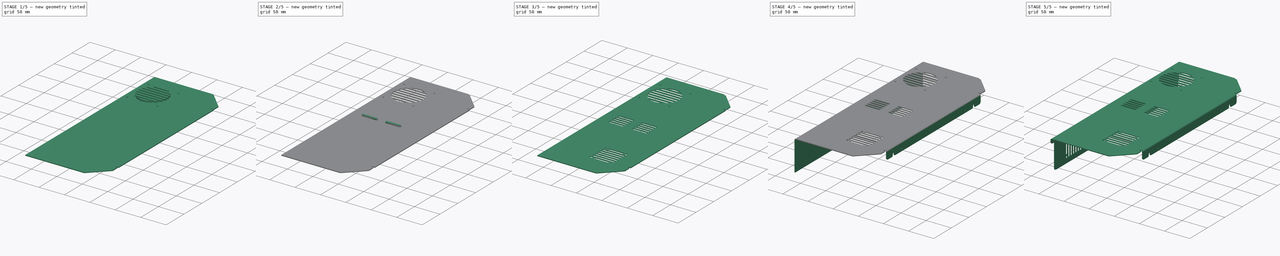
[diagram: build sequence overview — one tinted view per stage of 5, left to right]
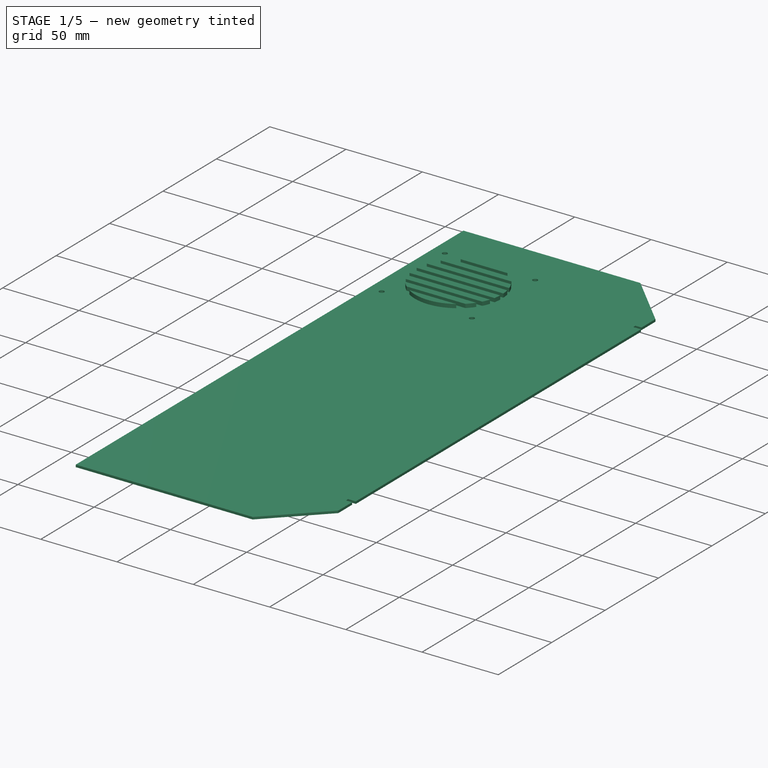
[diagram: stage 1 of 5 — iso view after this stage's code; geometry added in this stage tinted green]
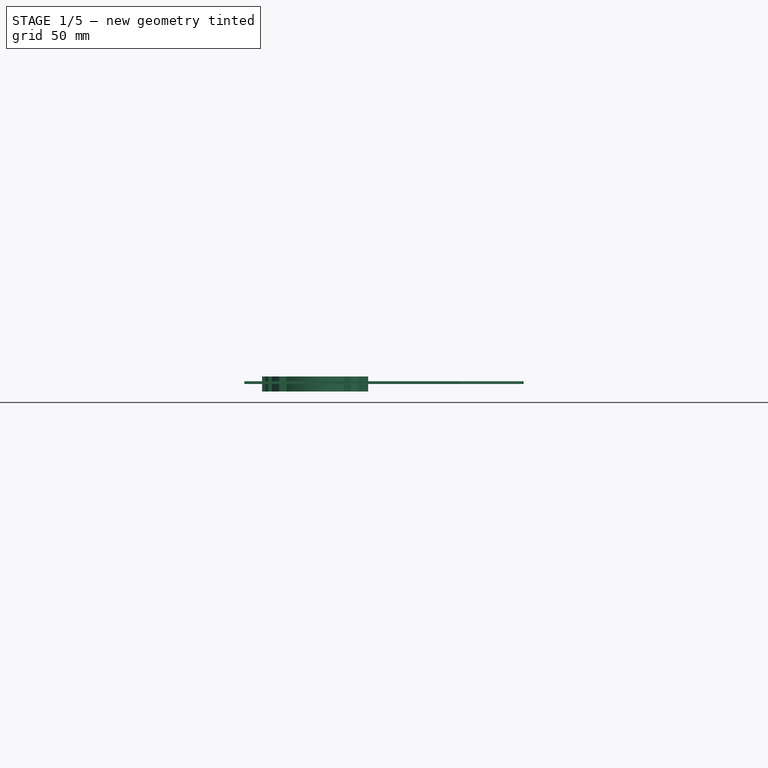
[diagram: stage 1 of 5 — front view after this stage's code; geometry added in this stage tinted green]
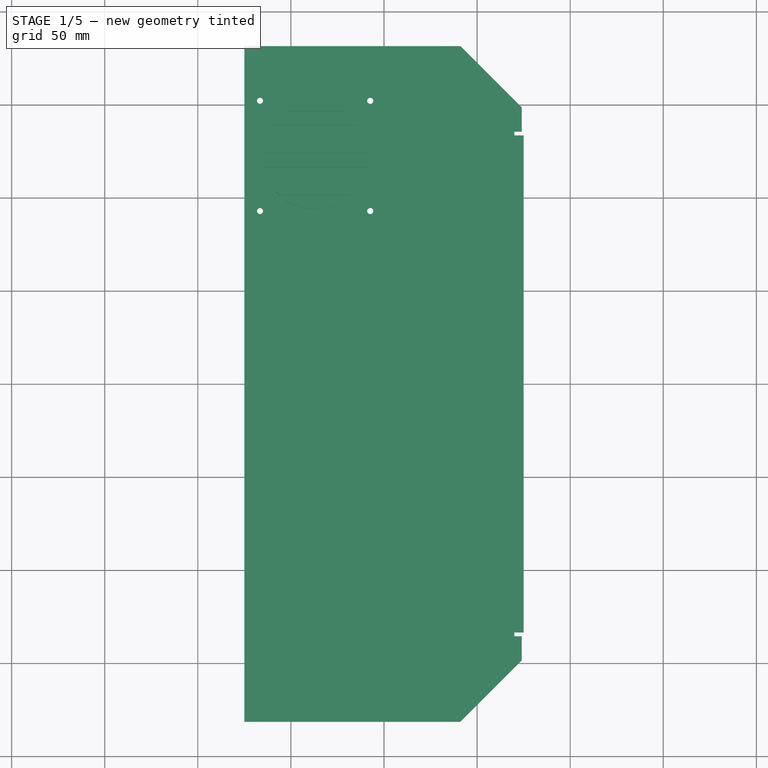
[diagram: stage 1 of 5 — top view after this stage's code; geometry added in this stage tinted green]
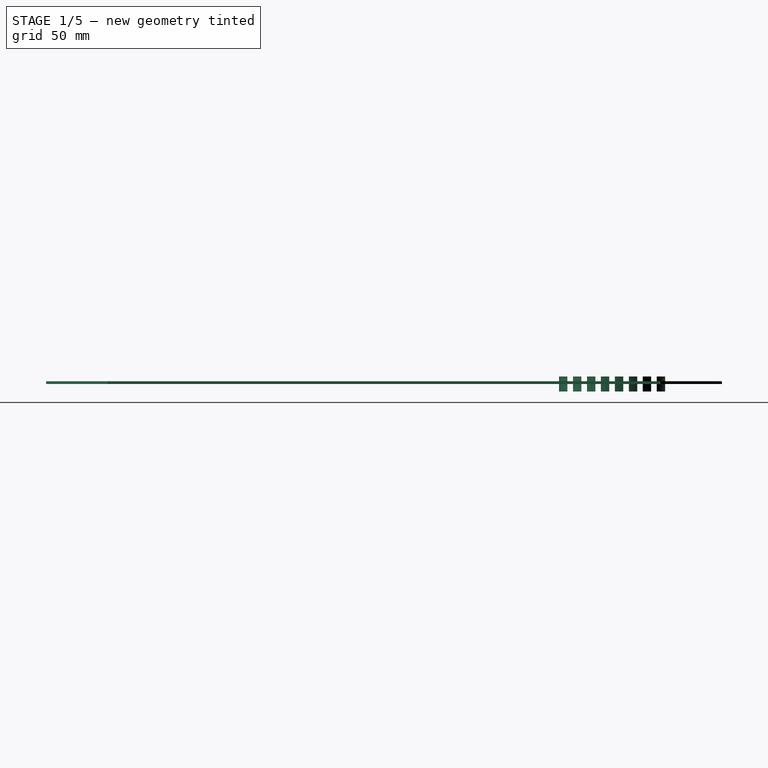
[diagram: stage 1 of 5 — right view after this stage's code; geometry added in this stage tinted green]
FCSTD DOCUMENT  (FreeCAD 0.14R3310 (Git))
Label: 14. TAPA ELECTRÓNICA
License: CC-BY 3.0
LicenseURL: http://creativecommons.org/licenses/by/3.0/
objects: Sketcher::SketchObject×13, PartDesign::Fillet×9, PartDesign::Pad×7, PartDesign::Pocket×5, Part::Cut×4, Part::FeaturePython×2, PartDesign::Chamfer×1
note: 53 computed .brp shape members not serialized (recipe doc carries the construction recipe); baked Part::Feature solids carry a one-line shape summary decoded from their .brp

FEATURE [Sketcher::SketchObject] Sketch
  sketch-geometry (4):
    g0: LineSegment StartX=-75 StartY=181.5 StartZ=0 EndX=75 EndY=181.5 EndZ=0
    g1: LineSegment StartX=75 StartY=181.5 StartZ=0 EndX=75 EndY=-181.5 EndZ=0
    g2: LineSegment StartX=75 StartY=-181.5 StartZ=0 EndX=-75 EndY=-181.5 EndZ=0
    g3: LineSegment StartX=-75 StartY=-181.5 StartZ=0 EndX=-75 EndY=181.5 EndZ=0
  constraints (11):
    c: Coincident(g0,g1)
    c: Coincident(g1,g2)
    c: Coincident(g2,g3)
    c: Coincident(g3,g0)
    c: Horizontal(g0)
    c: Horizontal(g2)
    c: Vertical(g1)
    c: Vertical(g3)
    c: Symmetric(g1,g0,g-1)
    c: Distance(g1) = 363
    c: Distance(g0) = 150
FEATURE [PartDesign::Pad] Pad
  Length = 1.5
  Length2 = 100
  Sketch = -> Sketch
  Type = 0
FEATURE [PartDesign::Chamfer] Chamfer
  Base = -> Pad [Edge5,Edge2]
  Size = 34
FEATURE [Sketcher::SketchObject] Sketch001
  ExternalGeometry = -> [Chamfer]
  Placement = pos=(0,0,1.5) rot=(0,0,1;0rad)
  Support = -> Chamfer [Face5]
  sketch-geometry (16):
    g0: Circle CenterX=-66.6 CenterY=152.1 CenterZ=0 NormalX=0 NormalY=0 NormalZ=1 Radius=1.62
    g1: Circle CenterX=-7.4 CenterY=152.1 CenterZ=0 NormalX=0 NormalY=0 NormalZ=1 Radius=1.62
    g2: Circle CenterX=-66.6 CenterY=92.9 CenterZ=0 NormalX=0 NormalY=0 NormalZ=1 Radius=1.62
    g3: Circle CenterX=-7.4 CenterY=92.9 CenterZ=0 NormalX=0 NormalY=0 NormalZ=1 Radius=1.62
    g4: LineSegment StartX=70 StartY=-135.5 StartZ=0 EndX=74 EndY=-135.5 EndZ=0
    g5: LineSegment StartX=70 StartY=-135.5 StartZ=0 EndX=70 EndY=-133.5 EndZ=0
    g6: LineSegment StartX=70 StartY=-133.5 StartZ=0 EndX=75 EndY=-133.5 EndZ=0
    g7: LineSegment StartX=74 StartY=-135.5 StartZ=0 EndX=74 EndY=-151.5 EndZ=0
    g8: LineSegment StartX=75 StartY=-133.5 StartZ=0 EndX=75 EndY=-151.5 EndZ=0
    g9: LineSegment StartX=75 StartY=-151.5 StartZ=0 EndX=74 EndY=-151.5 EndZ=0
    g10: LineSegment StartX=74 StartY=135.5 StartZ=0 EndX=70 EndY=135.5 EndZ=0
    g11: LineSegment StartX=70 StartY=135.5 StartZ=0 EndX=70 EndY=133.5 EndZ=0
    g12: LineSegment StartX=70 StartY=133.5 StartZ=0 EndX=75 EndY=133.5 EndZ=0
    g13: LineSegment StartX=75 StartY=133.5 StartZ=0 EndX=75 EndY=151.5 EndZ=0
    g14: LineSegment StartX=74 StartY=135.5 StartZ=0 EndX=74 EndY=151.5 EndZ=0
    g15: LineSegment StartX=75 StartY=151.5 StartZ=0 EndX=74 EndY=151.5 EndZ=0
  constraints (47):
    c: Equal(g0,g2)
    c: Equal(g2,g3)
    c: Equal(g3,g1)
    c: Distance(g0,g-4) = 29.4
    c: Distance(g0,g-3) = 8.4
    c: Distance(g2,g-3) = 8.4
    c: Distance(g2,g0) = 59.2
    c: Distance(g0,g1) = 59.2
    c: Distance(g1,g-4) = 29.4
    c: Distance(g3,g1) = 59.2
    c: Distance(g3,g2) = 59.2
    c: Radius(g2) = 1.62
    c: Horizontal(g4)
    c: Coincident(g5,g4)
    c: Vertical(g5)
    c: Coincident(g6,g5)
    c: Horizontal(g6)
    c: PointOnObject(g6,g-6)
    c: Distance(g4,g-5) = 46
    c: Distance(g4,g6) = 2
    c: Distance(g6) = 5
    c: Distance(g4) = 4
    c: Coincident(g7,g4)
    c: Vertical(g7)
    c: Coincident(g8,g6)
    c: Vertical(g8)
    c: Coincident(g9,g8)
    c: Coincident(g9,g7)
    c: Horizontal(g9)
    c: Distance(g8) = 18
    c: Horizontal(g10)
    c: Coincident(g11,g10)
    c: Vertical(g11)
    c: Coincident(g12,g11)
    c: PointOnObject(g12,g-6)
    c: Horizontal(g12)
    c: Coincident(g13,g12)
    c: Vertical(g13)
    c: Coincident(g14,g10)
    c: Vertical(g14)
    c: Coincident(g15,g13)
    c: Coincident(g15,g14)
    c: Horizontal(g15)
    c: Symmetric(g12,g6,g-1)
    c: Symmetric(g7,g14,g-1)
    c: Symmetric(g4,g10,g-1)
    c: Symmetric(g11,g5,g-1)
FEATURE [PartDesign::Pocket] Pocket
  Length = 5
  Sketch = -> Sketch001
  Type = 0
FEATURE [Sketcher::SketchObject] Sketch003
  sketch-geometry (1):
    g0: Circle CenterX=-37 CenterY=122.5 CenterZ=0 NormalX=0 NormalY=0 NormalZ=1 Radius=28.5
  constraints (3):
    c: Radius(g0) = 28.5
    c: DistanceX(g-2,g0) = -37
    c: DistanceY(g-1,g0) = 122.5
FEATURE [PartDesign::Pad] Pad001
  Length = 8
  Length2 = 100
  Midplane = true
  Sketch = -> Sketch003
  Type = 0
FEATURE [PartDesign::Pad] Pad002
  Length = 8
  Length2 = 100
  Midplane = true
  Sketch = -> Sketch004
  Type = 0
FEATURE [Part::Cut] Cut
  Base = -> Pad001
  Tool = -> Pad002
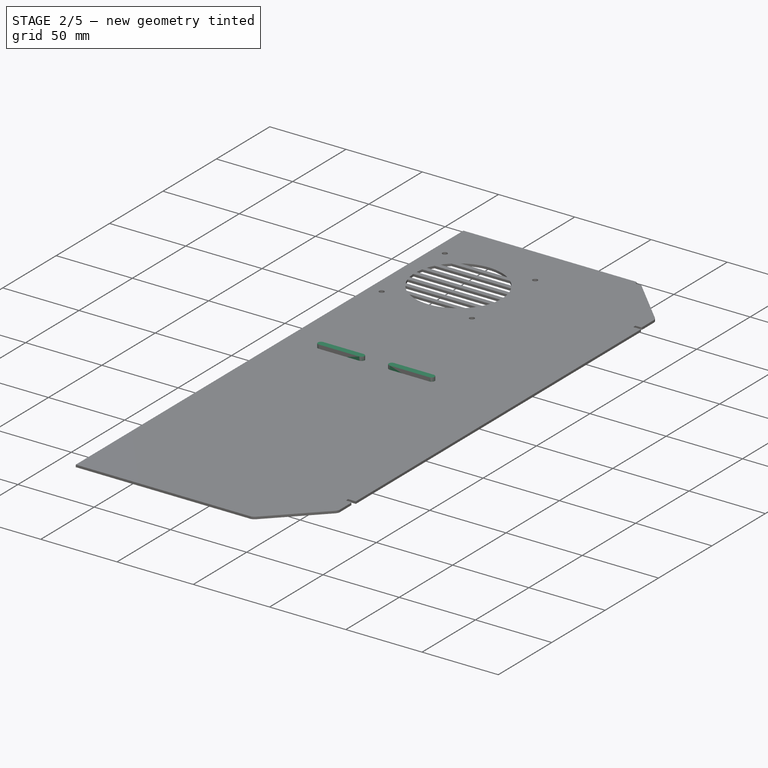
[diagram: stage 2 of 5 — iso view after this stage's code; geometry added in this stage tinted green]
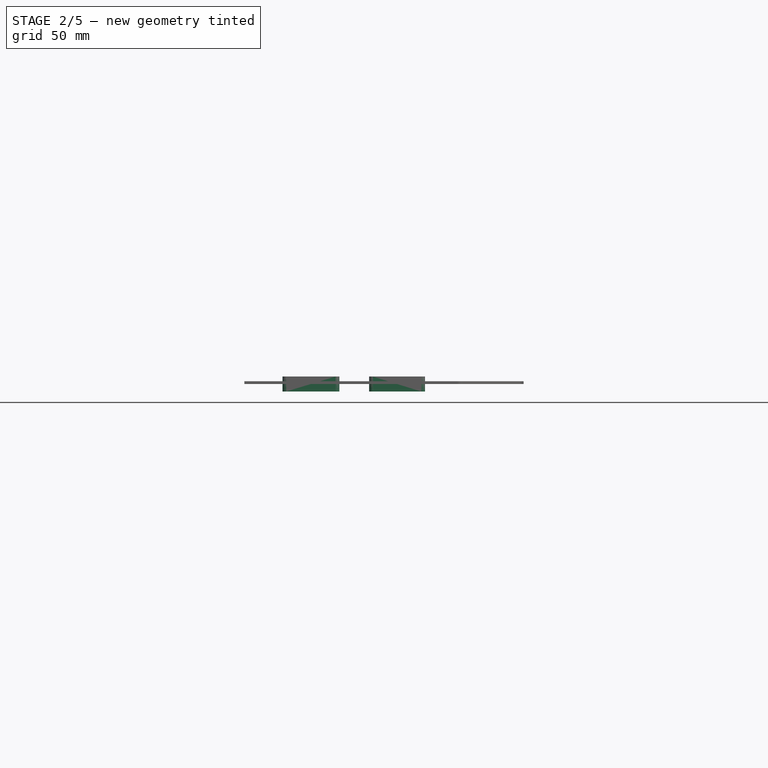
[diagram: stage 2 of 5 — front view after this stage's code; geometry added in this stage tinted green]
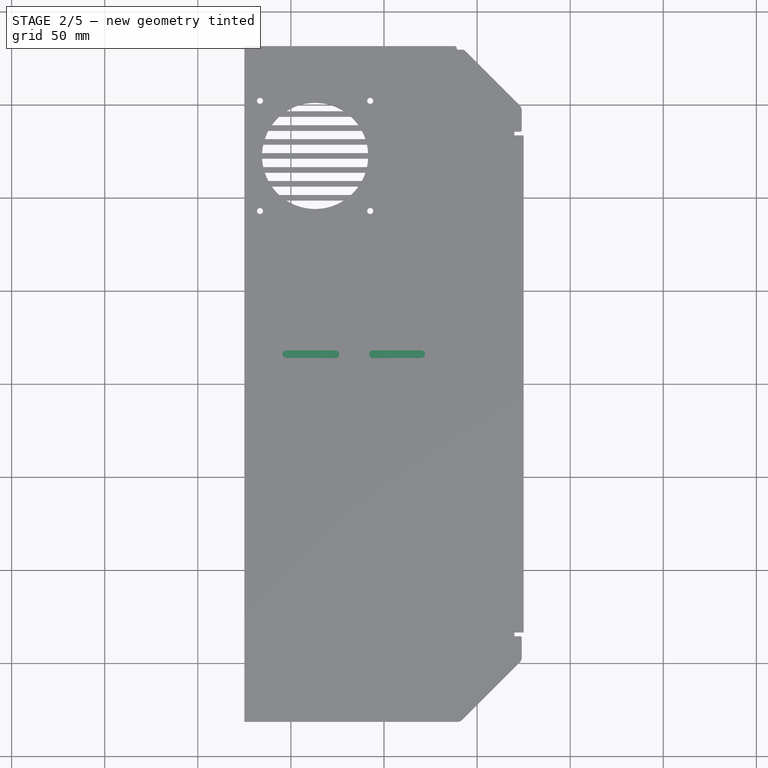
[diagram: stage 2 of 5 — top view after this stage's code; geometry added in this stage tinted green]
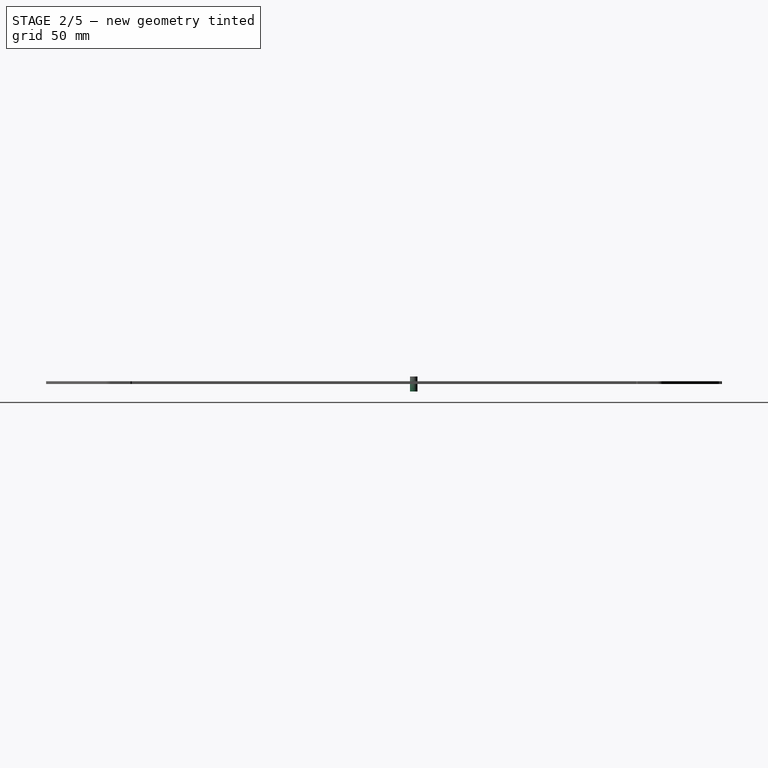
[diagram: stage 2 of 5 — right view after this stage's code; geometry added in this stage tinted green]
FEATURE [Sketcher::SketchObject] Sketch002
  ExternalGeometry = -> [Pocket]
  Placement = pos=(0,0,1.5) rot=(0,0,1;0rad)
  Support = -> Pocket [Face5]
  sketch-geometry (6):
    g0: LineSegment StartX=41 StartY=181.5 StartZ=0 EndX=43.2929 EndY=179.207 EndZ=0
    g1: LineSegment StartX=41 StartY=181.5 StartZ=0 EndX=37.9958 EndY=181.5 EndZ=0
    g2: ArcOfCircle CenterX=37.9958 CenterY=180.5 CenterZ=0 NormalX=0 NormalY=0 NormalZ=1 Radius=1 StartAngle=1.7964e-08 EndAngle=1.5708
    g3: ArcOfCircle CenterX=39.9958 CenterY=180.5 CenterZ=0 NormalX=0 NormalY=0 NormalZ=1 Radius=1 StartAngle=3.14159 EndAngle=4.71239
    g4: LineSegment StartX=39.9958 StartY=179.5 StartZ=0 EndX=42.5858 EndY=179.5 EndZ=0
    g5: ArcOfCircle CenterX=42.5858 CenterY=178.5 CenterZ=0 NormalX=0 NormalY=0 NormalZ=1 Radius=1 StartAngle=0.785385 EndAngle=1.5708
  constraints (22):
    c: Coincident(g0,g-4)
    c: PointOnObject(g0,g-3)
    c: Coincident(g1,g0)
    c: PointOnObject(g1,g-4)
    c: Coincident(g2,g1)
    c: Tangent(g2,g1)
    c: Coincident(g3,g2)
    c: Tangent(g3,g2)
    c: Coincident(g4,g3)
    c: Horizontal(g4)
    c: Tangent(g3,g4)
    c: Radius(g3) = 1
    c: Radius(g2) = 1
    c: Distance(g3,g1) = 2
    c: Coincident(g5,g4)
    c: Tangent(g5,g4)
    c: Radius(g5) = 1
    c: PointOnObject(g5,g0)
    c: Tangent(g0,g5)
    c: Distance(g4) = 2.59
    c: Coincident(g5,g0)
    c: Coincident(g0,g5)
FEATURE [PartDesign::Pocket] Pocket001
  Length = 5
  Sketch = -> Sketch002
  Type = 0
FEATURE [PartDesign::Fillet] Fillet
  Base = -> Pocket001 [Edge51,Edge61,Edge62]
  Radius = 4
FEATURE [PartDesign::Fillet] Fillet001
  Base = -> Fillet [Edge64,Edge36]
  Radius = 1
FEATURE [Sketcher::SketchObject] Sketch004
  sketch-geometry (29):
    g0: LineSegment StartX=-70 StartY=101.5 StartZ=0 EndX=0 EndY=101.5 EndZ=0
    g1: LineSegment StartX=0 StartY=101.5 StartZ=0 EndX=0 EndY=98.5 EndZ=0
    g2: LineSegment StartX=0 StartY=98.5 StartZ=0 EndX=-70 EndY=98.5 EndZ=0
    g3: LineSegment StartX=-70 StartY=98.5 StartZ=0 EndX=-70 EndY=101.5 EndZ=0
    g4: LineSegment [constr] StartX=-70 StartY=0 StartZ=0 EndX=-70 EndY=180 EndZ=0
    g5: LineSegment StartX=-70 StartY=106 StartZ=0 EndX=0 EndY=106 EndZ=0
    g6: LineSegment StartX=0 StartY=106 StartZ=0 EndX=0 EndY=109 EndZ=0
    g7: LineSegment StartX=0 StartY=109 StartZ=0 EndX=-70 EndY=109 EndZ=0
    g8: LineSegment StartX=-70 StartY=109 StartZ=0 EndX=-70 EndY=106 EndZ=0
    g9: LineSegment StartX=-70 StartY=116.5 StartZ=0 EndX=0 EndY=116.5 EndZ=0
    g10: LineSegment StartX=0 StartY=116.5 StartZ=0 EndX=0 EndY=113.5 EndZ=0
    g11: LineSegment StartX=0 StartY=113.5 StartZ=0 EndX=-70 EndY=113.5 EndZ=0
    g12: LineSegment StartX=-70 StartY=113.5 StartZ=0 EndX=-70 EndY=116.5 EndZ=0
    g13: LineSegment StartX=-70 StartY=124 StartZ=0 EndX=0 EndY=124 EndZ=0
    g14: LineSegment StartX=0 StartY=124 StartZ=0 EndX=0 EndY=121 EndZ=0
    g15: LineSegment StartX=0 StartY=121 StartZ=0 EndX=-70 EndY=121 EndZ=0
    g16: LineSegment StartX=-70 StartY=121 StartZ=0 EndX=-70 EndY=124 EndZ=0
    g17: LineSegment StartX=-70 StartY=131.5 StartZ=0 EndX=0 EndY=131.5 EndZ=0
    g18: LineSegment StartX=0 StartY=131.5 StartZ=0 EndX=0 EndY=128.5 EndZ=0
    g19: LineSegment StartX=0 StartY=128.5 StartZ=0 EndX=-70 EndY=128.5 EndZ=0
    g20: LineSegment StartX=-70 StartY=128.5 StartZ=0 EndX=-70 EndY=131.5 EndZ=0
    g21: LineSegment StartX=-70 StartY=139 StartZ=0 EndX=0 EndY=139 EndZ=0
    g22: LineSegment StartX=0 StartY=139 StartZ=0 EndX=0 EndY=136 EndZ=0
    g23: LineSegment StartX=0 StartY=136 StartZ=0 EndX=-70 EndY=136 EndZ=0
    g24: LineSegment StartX=-70 StartY=136 StartZ=0 EndX=-70 EndY=139 EndZ=0
    g25: LineSegment StartX=-70 StartY=146.5 StartZ=0 EndX=0 EndY=146.5 EndZ=0
    g26: LineSegment StartX=0 StartY=146.5 StartZ=0 EndX=0 EndY=143.5 EndZ=0
    g27: LineSegment StartX=0 StartY=143.5 StartZ=0 EndX=-70 EndY=143.5 EndZ=0
    g28: LineSegment StartX=-70 StartY=143.5 StartZ=0 EndX=-70 EndY=146.5 EndZ=0
  constraints (88):
    c: Coincident(g0,g1)
    c: Coincident(g1,g2)
    c: Coincident(g2,g3)
    c: Coincident(g3,g0)
    c: Horizontal(g0)
    c: Horizontal(g2)
    c: Vertical(g1)
    c: Vertical(g3)
    c: PointOnObject(g1,g-2)
    c: PointOnObject(g4,g-1)
    c: Vertical(g4)
    c: DistanceX(g-2,g4) = -70
    c: Distance(g4) = 180
    c: PointOnObject(g2,g4)
    c: Distance(g-1,g1) = 98.5
    c: Distance(g1) = 3
    c: Coincident(g5,g6)
    c: Coincident(g6,g7)
    c: Coincident(g7,g8)
    c: Coincident(g8,g5)
    c: Horizontal(g5)
    c: Horizontal(g7)
    c: Vertical(g6)
    c: Vertical(g8)
    c: PointOnObject(g5,g4)
    c: PointOnObject(g6,g-2)
    c: Distance(g6) = 3
    c: Coincident(g9,g10)
    c: Coincident(g10,g11)
    c: Coincident(g11,g12)
    c: Coincident(g12,g9)
    c: Horizontal(g9)
    c: Horizontal(g11)
    c: Vertical(g10)
    c: Vertical(g12)
    c: PointOnObject(g9,g4)
    c: PointOnObject(g10,g-2)
    c: Distance(g10) = 3
    c: Coincident(g13,g14)
    c: Coincident(g14,g15)
    c: Coincident(g15,g16)
    c: Coincident(g16,g13)
    c: Horizontal(g13)
    c: Horizontal(g15)
    c: Vertical(g14)
    c: Vertical(g16)
    c: PointOnObject(g13,g4)
    c: PointOnObject(g14,g-2)
    c: Distance(g14) = 3
    c: Coincident(g17,g18)
    c: Coincident(g18,g19)
    c: Coincident(g19,g20)
    c: Coincident(g20,g17)
    c: Horizontal(g17)
    c: Horizontal(g19)
    c: Vertical(g18)
    c: Vertical(g20)
    c: PointOnObject(g17,g4)
    c: PointOnObject(g18,g-2)
    c: Distance(g18) = 3
    c: Distance(g5,g0) = 4.5
    c: Distance(g11,g7) = 4.5
    c: Distance(g15,g9) = 4.5
    c: Distance(g19,g13) = 4.5
    c: Coincident(g21,g22)
    c: Coincident(g22,g23)
    c: Coincident(g23,g24)
    c: Coincident(g24,g21)
    c: Horizontal(g21)
    c: Horizontal(g23)
    c: Vertical(g22)
    c: Vertical(g24)
    c: PointOnObject(g21,g4)
    c: PointOnObject(g22,g-2)
    c: Coincident(g25,g26)
    c: Coincident(g26,g27)
    c: Coincident(g27,g28)
    c: Coincident(g28,g25)
    c: Horizontal(g25)
    c: Horizontal(g27)
    c: Vertical(g26)
    c: Vertical(g28)
    c: PointOnObject(g25,g4)
    c: PointOnObject(g26,g-2)
    c: Distance(g26) = 3
    c: Distance(g22) = 3
    c: Distance(g17,g23) = 4.5
    c: Distance(g27,g21) = 4.5
FEATURE [Sketcher::SketchObject] Sketch005
  sketch-geometry (8):
    g0: LineSegment StartX=-6 StartY=17.97 StartZ=0 EndX=20 EndY=17.97 EndZ=0
    g1: LineSegment StartX=-6 StartY=13.97 StartZ=0 EndX=20 EndY=13.97 EndZ=0
    g2: ArcOfCircle CenterX=20 CenterY=15.97 CenterZ=0 NormalX=0 NormalY=0 NormalZ=1 Radius=2 StartAngle=4.71239 EndAngle=7.85398
    g3: ArcOfCircle CenterX=-5.99998 CenterY=15.97 CenterZ=0 NormalX=0 NormalY=0 NormalZ=1 Radius=2 StartAngle=1.57081 EndAngle=4.71238
    g4: LineSegment StartX=-52.5 StartY=13.97 StartZ=0 EndX=-26 EndY=13.97 EndZ=0
    g5: LineSegment StartX=-52.5 StartY=17.97 StartZ=0 EndX=-26 EndY=17.97 EndZ=0
    g6: ArcOfCircle CenterX=-26 CenterY=15.97 CenterZ=0 NormalX=0 NormalY=0 NormalZ=1 Radius=2 StartAngle=4.7124 EndAngle=7.85397
    g7: ArcOfCircle CenterX=-52.5 CenterY=15.97 CenterZ=0 NormalX=0 NormalY=0 NormalZ=1 Radius=2 StartAngle=1.5708 EndAngle=4.71239
  constraints (28):
    c: Horizontal(g0)
    c: DistanceY(g-1,g0) = 17.97
    c: Distance(g0) = 26
    c: DistanceX(g-2,g0) = 20
    c: Horizontal(g1)
    c: Coincident(g2,g0)
    c: Coincident(g2,g1)
    c: Coincident(g3,g0)
    c: Coincident(g3,g1)
    c: Tangent(g2,g1)
    c: Tangent(g3,g1)
    c: Tangent(g3,g0)
    c: Tangent(g2,g0)
    c: Radius(g2) = 2
    c: Horizontal(g4)
    c: Horizontal(g5)
    c: Coincident(g6,g5)
    c: Coincident(g6,g4)
    c: Coincident(g7,g5)
    c: Coincident(g7,g4)
    c: Tangent(g4,g7)
    c: Tangent(g5,g7)
    c: Tangent(g5,g6)
    c: Tangent(g6,g4)
    c: Distance(g5) = 26.5
    c: Radius(g6) = 2
    c: DistanceY(g-1,g6) = 15.97
    c: Distance(g6,g3) = 20
FEATURE [PartDesign::Pad] Pad003
  Length = 8
  Length2 = 100
  Midplane = true
  Sketch = -> Sketch005
  Type = 0
FEATURE [Part::Cut] Cut001
  Base = -> Fillet001
  Tool = -> Cut
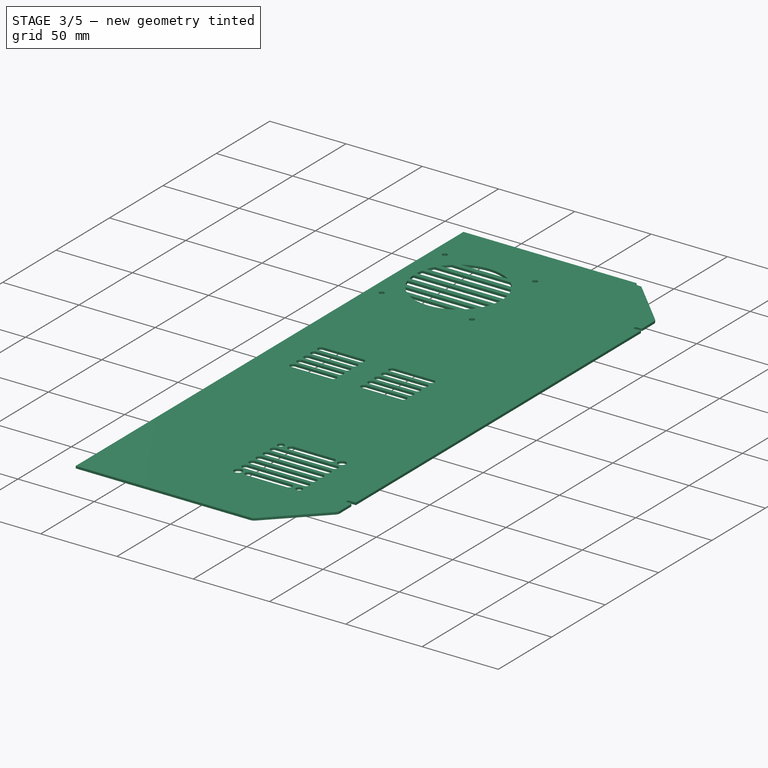
[diagram: stage 3 of 5 — iso view after this stage's code; geometry added in this stage tinted green]
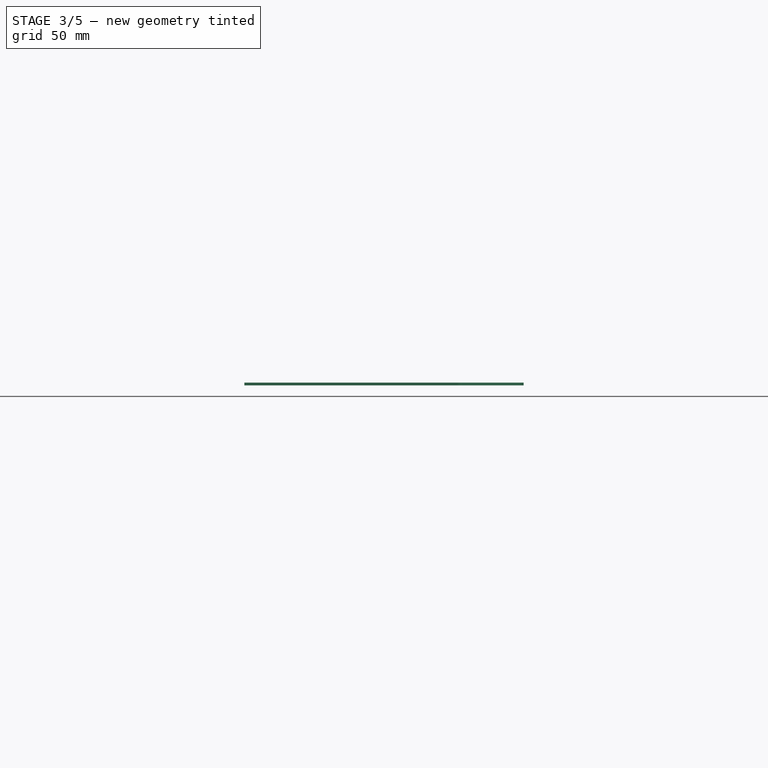
[diagram: stage 3 of 5 — front view after this stage's code; geometry added in this stage tinted green]
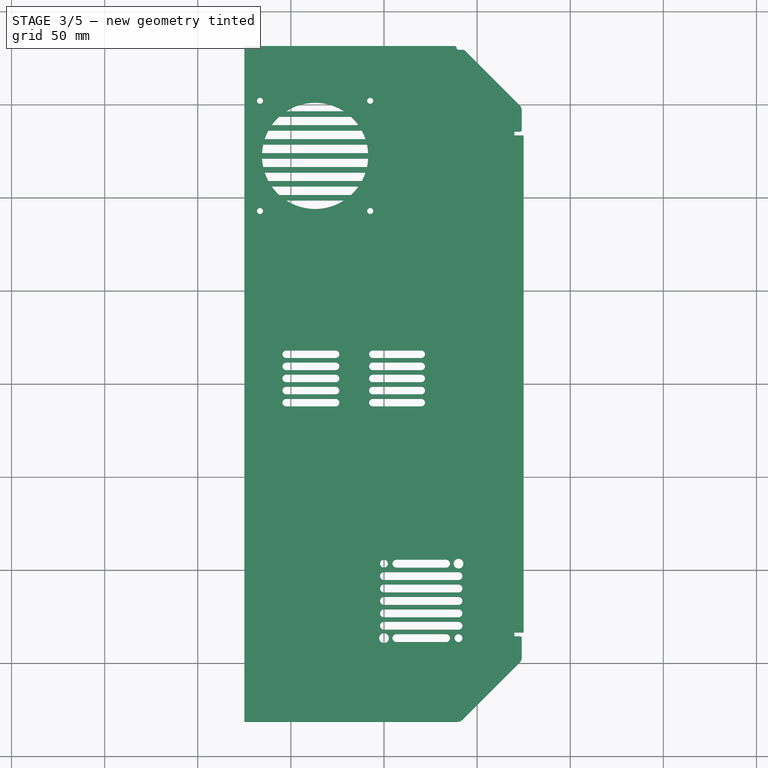
[diagram: stage 3 of 5 — top view after this stage's code; geometry added in this stage tinted green]
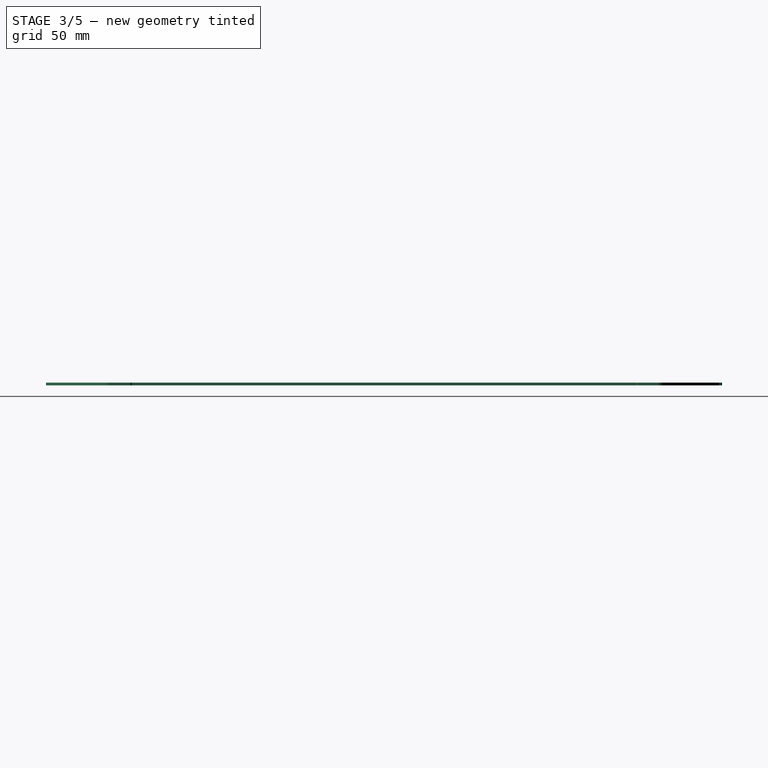
[diagram: stage 3 of 5 — right view after this stage's code; geometry added in this stage tinted green]
FEATURE [Part::FeaturePython] Array  # Draft array (typed FeaturePython)
  Angle = 360
  ArrayType = 0
  Axis = (0,0,1)
  Base = -> Pad003
  Center = (0,0,0)
  IntervalX = (1,0,0)
  IntervalY = (0,-6.5,0)
  IntervalZ = (0,0,1)
  NumberPolar = 1
  NumberX = 1
  NumberY = 5
  NumberZ = 1
FEATURE [Sketcher::SketchObject] Sketch006
  sketch-geometry (4):
    g0: ArcOfCircle CenterX=0 CenterY=-103.17 CenterZ=0 NormalX=0 NormalY=0 NormalZ=1 Radius=2.1 StartAngle=1.5708 EndAngle=4.71239
    g1: LineSegment StartX=0 StartY=-101.07 StartZ=0 EndX=40 EndY=-101.07 EndZ=0
    g2: LineSegment StartX=0 StartY=-105.27 StartZ=0 EndX=40 EndY=-105.27 EndZ=0
    g3: ArcOfCircle CenterX=40 CenterY=-103.17 CenterZ=0 NormalX=0 NormalY=0 NormalZ=1 Radius=2.1 StartAngle=4.71238 EndAngle=7.85399
  constraints (14):
    c: PointOnObject(g0,g-2)
    c: PointOnObject(g0,g-2)
    c: PointOnObject(g0,g-2)
    c: DistanceY(g-1,g0) = -103.17
    c: Radius(g0) = 2.1
    c: Coincident(g1,g0)
    c: Horizontal(g1)
    c: Distance(g1) = 40
    c: Coincident(g2,g0)
    c: Horizontal(g2)
    c: Distance(g2) = 40
    c: Coincident(g3,g1)
    c: Coincident(g3,g2)
    c: Tangent(g3,g2)
FEATURE [PartDesign::Pad] Pad004
  Length = 8
  Length2 = 100
  Midplane = true
  Sketch = -> Sketch006
  Type = 0
FEATURE [Part::FeaturePython] Array001  # Draft array (typed FeaturePython)
  Angle = 360
  ArrayType = 0
  Axis = (0,0,1)
  Base = -> Pad004
  Center = (0,0,0)
  IntervalX = (1,0,0)
  IntervalY = (0,-6.67,0)
  IntervalZ = (0,0,1)
  NumberPolar = 1
  NumberX = 1
  NumberY = 5
  NumberZ = 1
FEATURE [Part::Cut] Cut002
  Base = -> Cut001
  Tool = -> Array
FEATURE [Part::Cut] Cut003
  Base = -> Cut002
  Tool = -> Array001
FEATURE [Sketcher::SketchObject] Sketch007
  Placement = pos=(0,0,1.5) rot=(0,0,1;0rad)
  Support = -> Cut003 [Face117]
  sketch-geometry (16):
    g0: LineSegment [constr] StartX=0 StartY=-96.5 StartZ=0 EndX=40 EndY=-96.5 EndZ=0
    g1: LineSegment [constr] StartX=40 StartY=-96.5 StartZ=0 EndX=40 EndY=-136.5 EndZ=0
    g2: LineSegment [constr] StartX=40 StartY=-136.5 StartZ=0 EndX=0 EndY=-136.5 EndZ=0
    g3: LineSegment [constr] StartX=0 StartY=-136.5 StartZ=0 EndX=0 EndY=-96.5 EndZ=0
    g4: Circle CenterX=0 CenterY=-96.5 CenterZ=0 NormalX=0 NormalY=0 NormalZ=1 Radius=2.1
    g5: Circle CenterX=40 CenterY=-96.5 CenterZ=0 NormalX=0 NormalY=0 NormalZ=1 Radius=2.6
    g6: Circle CenterX=0 CenterY=-136.5 CenterZ=0 NormalX=0 NormalY=0 NormalZ=1 Radius=2.6
    g7: Circle CenterX=40 CenterY=-136.5 CenterZ=0 NormalX=0 NormalY=0 NormalZ=1 Radius=2.1
    g8: LineSegment StartX=6.67 StartY=-138.6 StartZ=0 EndX=33.33 EndY=-138.6 EndZ=0
    g9: LineSegment StartX=6.67 StartY=-134.4 StartZ=0 EndX=33.33 EndY=-134.4 EndZ=0
    g10: ArcOfCircle CenterX=6.67 CenterY=-136.5 CenterZ=0 NormalX=0 NormalY=0 NormalZ=1 Radius=2.1 StartAngle=1.5708 EndAngle=4.71239
    g11: ArcOfCircle CenterX=33.33 CenterY=-136.5 CenterZ=0 NormalX=0 NormalY=0 NormalZ=1 Radius=2.1 StartAngle=4.71239 EndAngle=7.85398
    g12: LineSegment StartX=6.67002 StartY=-94.4 StartZ=0 EndX=33.33 EndY=-94.4 EndZ=0
    g13: LineSegment StartX=6.67002 StartY=-98.6 StartZ=0 EndX=33.33 EndY=-98.6 EndZ=0
    g14: ArcOfCircle CenterX=6.67 CenterY=-96.5 CenterZ=0 NormalX=0 NormalY=0 NormalZ=1 Radius=2.1 StartAngle=1.57079 EndAngle=4.7124
    g15: ArcOfCircle CenterX=33.33 CenterY=-96.5 CenterZ=0 NormalX=0 NormalY=0 NormalZ=1 Radius=2.1 StartAngle=4.71239 EndAngle=7.85398
  constraints (48):
    c: Coincident(g0,g1)
    c: Coincident(g1,g2)
    c: Coincident(g2,g3)
    c: Coincident(g3,g0)
    c: Horizontal(g0)
    c: Horizontal(g2)
    c: Vertical(g1)
    c: Vertical(g3)
    c: PointOnObject(g0,g-2)
    c: Distance(g1) = 40
    c: Distance(g0) = 40
    c: DistanceY(g-1,g0) = -96.5
    c: Coincident(g4,g0)
    c: Coincident(g5,g0)
    c: Coincident(g6,g2)
    c: Coincident(g7,g1)
    c: Equal(g7,g4)
    c: Equal(g5,g6)
    c: Radius(g5) = 2.6
    c: Radius(g4) = 2.1
    c: Horizontal(g8)
    c: Horizontal(g9)
    c: PointOnObject(g10,g2)
    c: Coincident(g10,g9)
    c: Coincident(g10,g8)
    c: PointOnObject(g11,g2)
    c: Coincident(g11,g9)
    c: Coincident(g11,g8)
    c: Tangent(g11,g8)
    c: Tangent(g11,g9)
    c: Tangent(g10,g9)
    c: Radius(g10) = 2.1
    c: Distance(g11,g1) = 6.67
    c: DistanceX(g8) = 26.66
    c: Horizontal(g12)
    c: Horizontal(g13)
    c: PointOnObject(g14,g0)
    c: Coincident(g14,g12)
    c: Coincident(g14,g13)
    c: PointOnObject(g15,g0)
    c: Coincident(g15,g12)
    c: Coincident(g15,g13)
    c: Tangent(g15,g13)
    c: Tangent(g15,g12)
    c: Tangent(g12,g14)
    c: Distance(g12) = 26.66
    c: Radius(g15) = 2.1
    c: Distance(g14,g0) = 6.67
FEATURE [PartDesign::Pocket] Pocket002
  Length = 5
  Sketch = -> Sketch007
  Type = 0
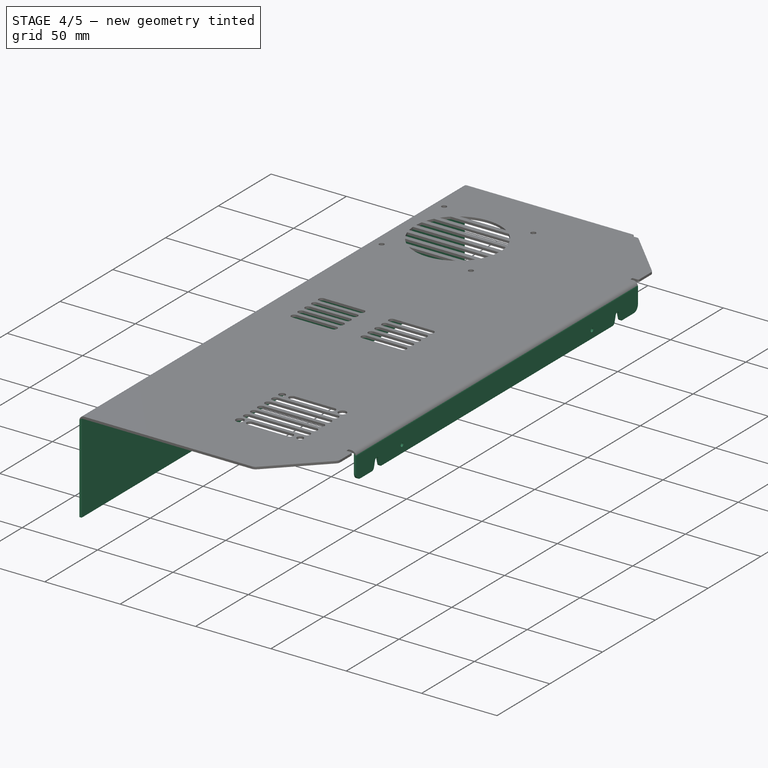
[diagram: stage 4 of 5 — iso view after this stage's code; geometry added in this stage tinted green]
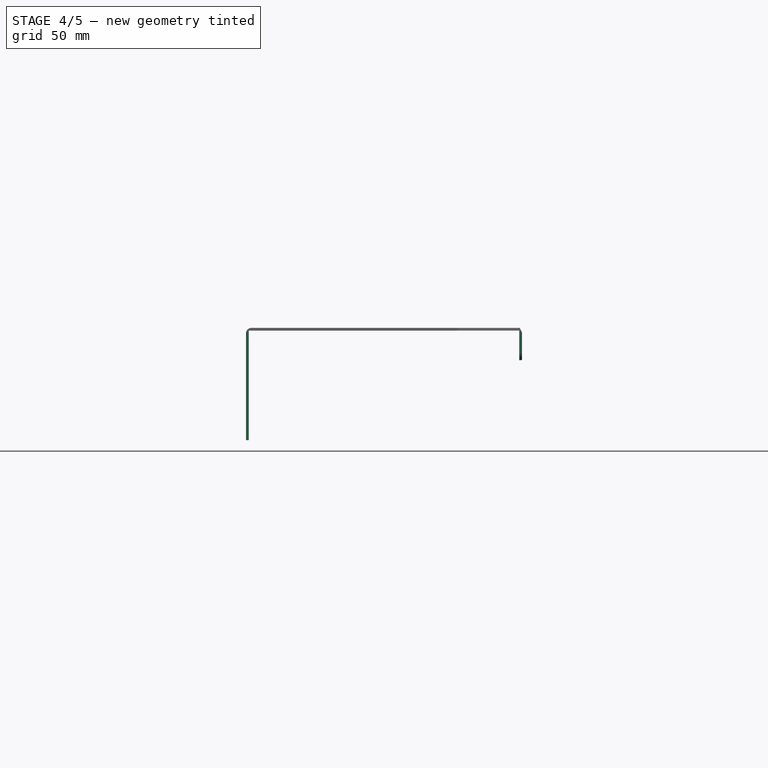
[diagram: stage 4 of 5 — front view after this stage's code; geometry added in this stage tinted green]
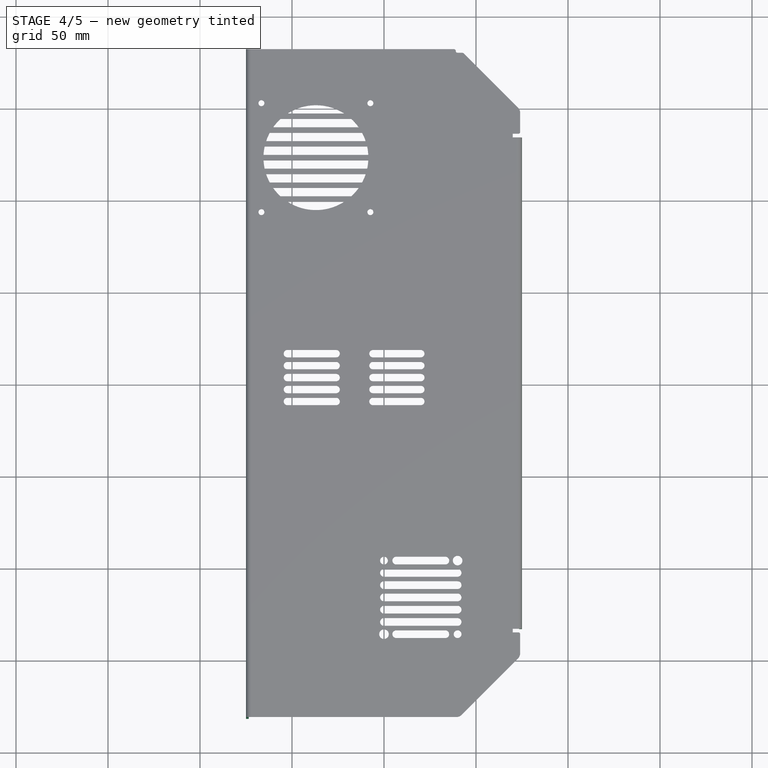
[diagram: stage 4 of 5 — top view after this stage's code; geometry added in this stage tinted green]
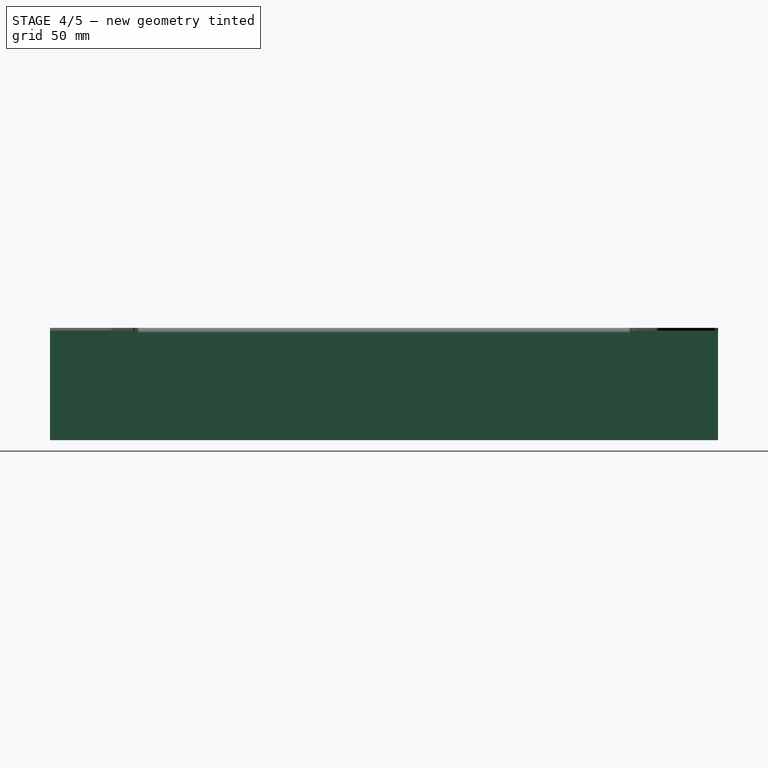
[diagram: stage 4 of 5 — right view after this stage's code; geometry added in this stage tinted green]
FEATURE [Sketcher::SketchObject] Sketch008
  ExternalGeometry = -> [Pocket002]
  Placement = pos=(75,0,0) rot=(0.57735,0.57735,0.57735;2.0944rad)
  Support = -> Pocket002 [Face11]
  sketch-geometry (14):
    g0: LineSegment StartX=-133.5 StartY=1.5 StartZ=0 EndX=133.5 EndY=1.5 EndZ=0
    g1: LineSegment StartX=133.5 StartY=1.5 StartZ=0 EndX=133.5 EndY=-16 EndZ=0
    g2: LineSegment StartX=-133.5 StartY=-16 StartZ=0 EndX=-133.5 EndY=1.5 EndZ=0
    g3: Circle CenterX=90 CenterY=-11 CenterZ=0 NormalX=0 NormalY=0 NormalZ=1 Radius=1.23
    g4: ArcOfCircle CenterX=114 CenterY=-11 CenterZ=0 NormalX=0 NormalY=0 NormalZ=1 Radius=1.63 StartAngle=0.261798 EndAngle=2.8798
    g5: LineSegment StartX=-110.973 StartY=-16 StartZ=0 EndX=110.973 EndY=-16 EndZ=0
    g6: LineSegment StartX=110.973 StartY=-16 StartZ=0 EndX=112.426 EndY=-10.5781 EndZ=0
    g7: LineSegment StartX=115.574 StartY=-10.5781 StartZ=0 EndX=117.027 EndY=-16 EndZ=0
    g8: LineSegment StartX=133.5 StartY=-16 StartZ=0 EndX=117.027 EndY=-16 EndZ=0
    g9: LineSegment StartX=-110.973 StartY=-16 StartZ=0 EndX=-112.426 EndY=-10.5781 EndZ=0
    g10: ArcOfCircle CenterX=-114 CenterY=-11 CenterZ=0 NormalX=0 NormalY=0 NormalZ=1 Radius=1.63 StartAngle=0.261799 EndAngle=2.87979
    g11: LineSegment StartX=-133.5 StartY=-16 StartZ=0 EndX=-117.027 EndY=-16 EndZ=0
    g12: LineSegment StartX=-117.027 StartY=-16 StartZ=0 EndX=-115.574 EndY=-10.5781 EndZ=0
    g13: Circle CenterX=-90 CenterY=-11 CenterZ=0 NormalX=0 NormalY=0 NormalZ=1 Radius=1.23
  constraints (42):
    c: Coincident(g0,g1)
    c: Coincident(g2,g0)
    c: Horizontal(g0)
    c: Vertical(g1)
    c: Vertical(g2)
    c: Coincident(g0,g-4)
    c: Coincident(g-3,g0)
    c: Distance(g1) = 17.5
    c: Distance(g2) = 17.5
    c: Radius(g3) = 1.23
    c: Horizontal(g5)
    c: Coincident(g6,g5)
    c: Coincident(g6,g4)
    c: Angle(g6,g5) = 1.8326
    c: Coincident(g7,g4)
    c: Coincident(g8,g1)
    c: Coincident(g8,g7)
    c: Horizontal(g8)
    c: Angle(g8,g7) = 1.8326
    c: Distance(g5,g0) = 17.5
    c: Distance(g3,g5) = 5
    c: DistanceX(g-2,g4) = 114
    c: Radius(g4) = 1.63
    c: Distance(g4,g5) = 5
    c: Tangent(g4,g6)
    c: Tangent(g4,g7)
    c: Coincident(g10,g9)
    c: Tangent(g10,g9)
    c: Equal(g10,g4)
    c: Coincident(g5,g9)
    c: Symmetric(g5,g5,g-2)
    c: Symmetric(g10,g4,g-2)
    c: Coincident(g11,g2)
    c: Horizontal(g11)
    c: Coincident(g12,g11)
    c: Coincident(g12,g10)
    c: Tangent(g12,g10)
    c: Angle(g12,g11) = 1.8326
    c: Symmetric(g10,g4,g-2)
    c: DistanceX(g-2,g3) = 90
    c: Symmetric(g13,g3,g-2)
    c: Equal(g13,g3)
FEATURE [PartDesign::Pad] Pad005
  Length = 1.5
  Length2 = 100
  Reversed = true
  Sketch = -> Sketch008
  Type = 0
FEATURE [PartDesign::Fillet] Fillet002
  Base = -> Pad005 [Edge392,Edge409]
  Radius = 4
FEATURE [PartDesign::Fillet] Fillet003
  Base = -> Fillet002 [Edge150,Edge163,Edge167,Edge162]
  Radius = 2
FEATURE [Sketcher::SketchObject] Sketch009
  ExternalGeometry = -> [Fillet003]
  Placement = pos=(-75,0,0) rot=(0.57735,-0.57735,-0.57735;2.0944rad)
  Support = -> Fillet003 [Face35]
  sketch-geometry (4):
    g0: LineSegment StartX=-181.5 StartY=1.5 StartZ=0 EndX=181.5 EndY=1.5 EndZ=0
    g1: LineSegment StartX=181.5 StartY=1.5 StartZ=0 EndX=181.5 EndY=-59.5 EndZ=0
    g2: LineSegment StartX=181.5 StartY=-59.5 StartZ=0 EndX=-181.5 EndY=-59.5 EndZ=0
    g3: LineSegment StartX=-181.5 StartY=-59.5 StartZ=0 EndX=-181.5 EndY=1.5 EndZ=0
  constraints (11):
    c: Coincident(g0,g1)
    c: Coincident(g1,g2)
    c: Coincident(g2,g3)
    c: Coincident(g3,g0)
    c: Horizontal(g0)
    c: Horizontal(g2)
    c: Vertical(g1)
    c: Vertical(g3)
    c: Coincident(g0,g-4)
    c: Coincident(g0,g-3)
    c: Distance(g3) = 61
FEATURE [PartDesign::Pad] Pad006
  Length = 1.5
  Length2 = 100
  Reversed = true
  Sketch = -> Sketch009
  Type = 0
FEATURE [Sketcher::SketchObject] Sketch010
  Placement = pos=(0,0,1.5) rot=(0,0,1;0rad)
  Support = -> Pad006 [Face146]
FEATURE [PartDesign::Fillet] Fillet004
  Base = -> Pad006 [Edge443,Edge410]
  Radius = 3
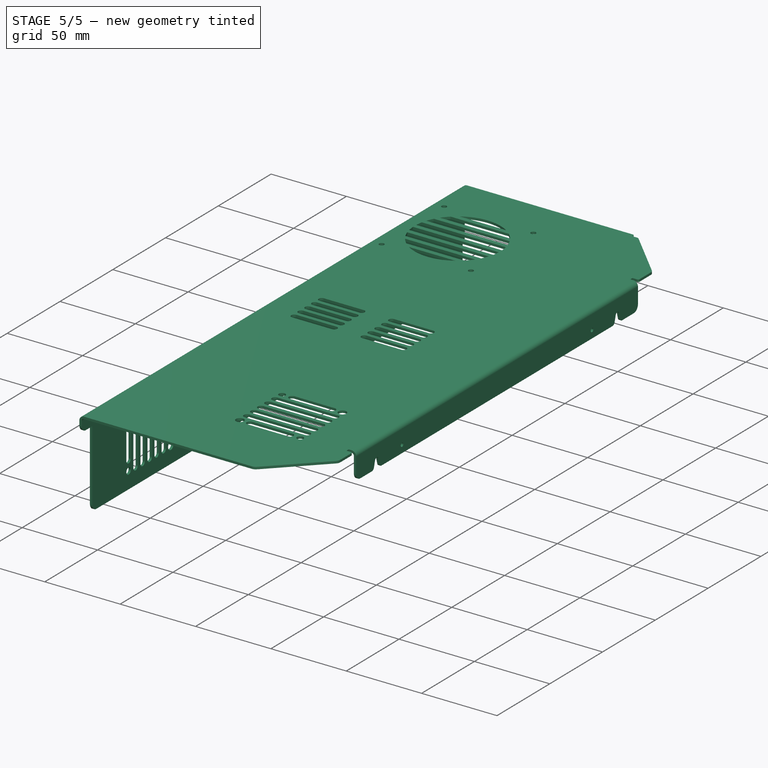
[diagram: stage 5 of 5 — iso view after this stage's code; geometry added in this stage tinted green]
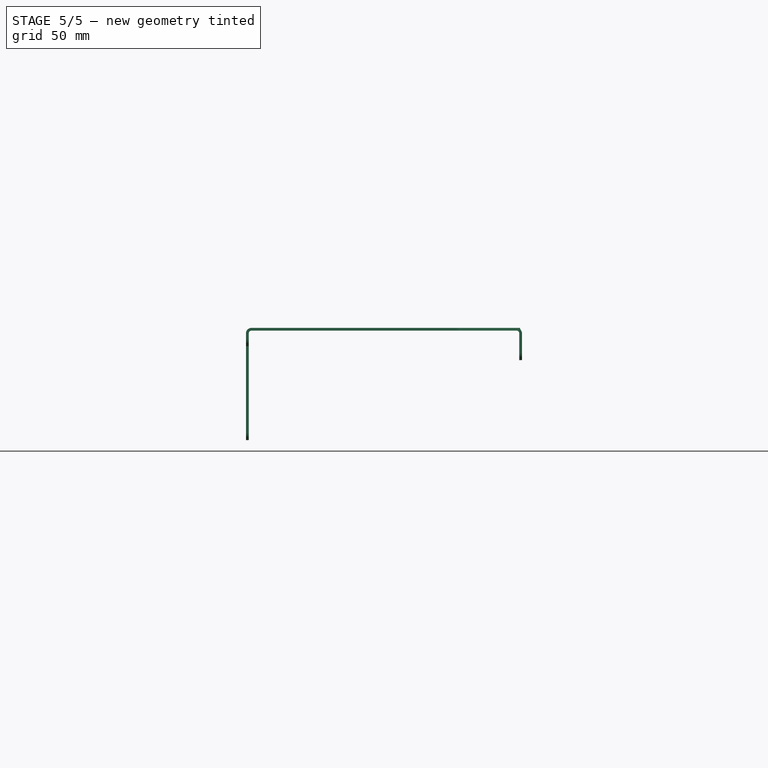
[diagram: stage 5 of 5 — front view after this stage's code; geometry added in this stage tinted green]
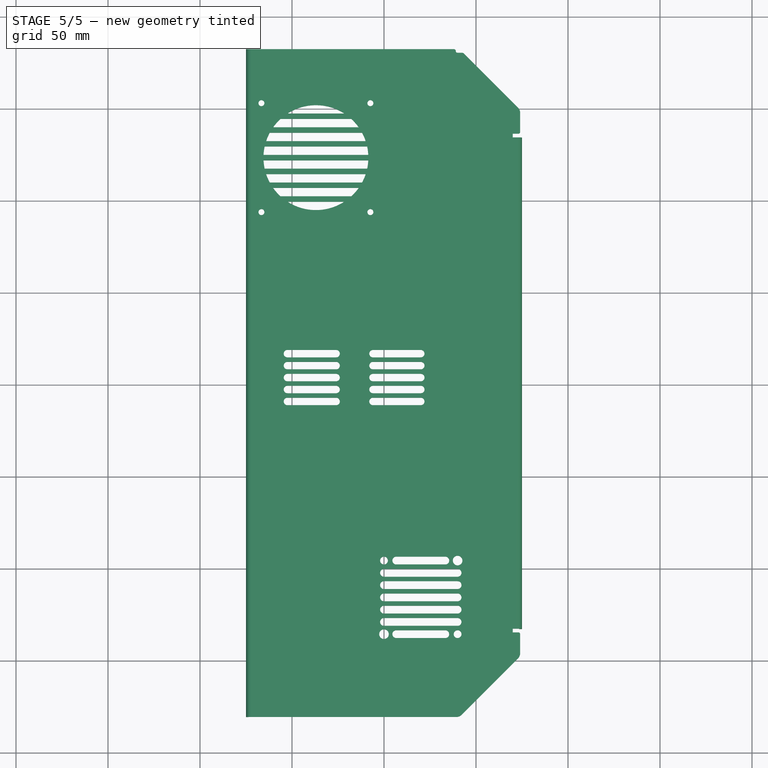
[diagram: stage 5 of 5 — top view after this stage's code; geometry added in this stage tinted green]
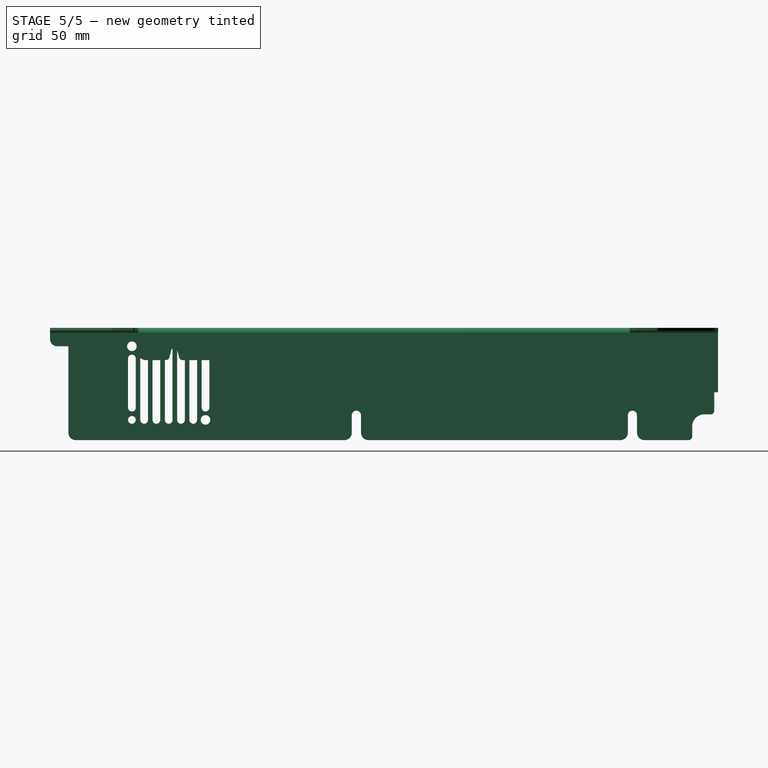
[diagram: stage 5 of 5 — right view after this stage's code; geometry added in this stage tinted green]
FEATURE [PartDesign::Fillet] Fillet005
  Base = -> Fillet004 [Edge163,Edge188]
  Radius = 1.5
FEATURE [Sketcher::SketchObject] Sketch011
  ExternalGeometry = -> [Fillet005]
  Placement = pos=(-75,0,0) rot=(0.57735,-0.57735,-0.57735;2.0944rad)
  Support = -> Fillet005 [Face154]
  sketch-geometry (38):
    g0: LineSegment StartX=181.5 StartY=-59.5 StartZ=0 EndX=171.5 EndY=-59.5 EndZ=0
    g1: LineSegment StartX=171.5 StartY=-59.5 StartZ=0 EndX=171.5 EndY=-8.5 EndZ=0
    g2: LineSegment StartX=171.5 StartY=-8.5 StartZ=0 EndX=181.5 EndY=-8.5 EndZ=0
    g3: LineSegment StartX=181.5 StartY=-8.5 StartZ=0 EndX=181.5 EndY=-59.5 EndZ=0
    g4: LineSegment StartX=-181.5 StartY=-33.5 StartZ=0 EndX=-179.5 EndY=-33.5 EndZ=0
    g5: LineSegment StartX=-179.5 StartY=-33.5 StartZ=0 EndX=-179.5 EndY=-45.5 EndZ=0
    g6: LineSegment [constr] StartX=-179.5 StartY=-45.5 StartZ=0 EndX=-181.5 EndY=-45.5 EndZ=0
    g7: LineSegment StartX=-181.5 StartY=-45.5 StartZ=0 EndX=-181.5 EndY=-33.5 EndZ=0
    g8: LineSegment StartX=-179.5 StartY=-45.5 StartZ=0 EndX=-167.5 EndY=-45.5 EndZ=0
    g9: LineSegment StartX=-167.5 StartY=-45.5 StartZ=0 EndX=-167.5 EndY=-59.5 EndZ=0
    g10: LineSegment StartX=-167.5 StartY=-59.5 StartZ=0 EndX=-179.5 EndY=-59.5 EndZ=0
    g11: LineSegment [constr] StartX=-179.5 StartY=-59.5 StartZ=0 EndX=-179.5 EndY=-45.5 EndZ=0
    g12: LineSegment StartX=-167.5 StartY=-59.5 StartZ=0 EndX=-181.5 EndY=-59.5 EndZ=0
    g13: LineSegment StartX=-181.5 StartY=-59.5 StartZ=0 EndX=-181.5 EndY=-45.5 EndZ=0
    g14: LineSegment StartX=-137.5 StartY=-59.5 StartZ=0 EndX=-137.5 EndY=-46 EndZ=0
    g15: LineSegment StartX=-132.5 StartY=-59.5 StartZ=0 EndX=-132.5 EndY=-46 EndZ=0
    g16: ArcOfCircle CenterX=-135 CenterY=-46 CenterZ=0 NormalX=0 NormalY=0 NormalZ=1 Radius=2.5 StartAngle=6.28319 EndAngle=9.42478
    g17: LineSegment StartX=-132.5 StartY=-59.5 StartZ=0 EndX=-137.5 EndY=-59.5 EndZ=0
    g18: LineSegment StartX=12.5 StartY=-59.5 StartZ=0 EndX=12.5 EndY=-46 EndZ=0
    g19: LineSegment StartX=17.5 StartY=-59.5 StartZ=0 EndX=17.5 EndY=-46 EndZ=0
    g20: ArcOfCircle CenterX=15 CenterY=-46 CenterZ=0 NormalX=0 NormalY=0 NormalZ=1 Radius=2.5 StartAngle=8.89091e-06 EndAngle=3.14158
    g21: LineSegment StartX=17.5 StartY=-59.5 StartZ=0 EndX=12.5 EndY=-59.5 EndZ=0
    g22: LineSegment [constr] StartX=97 StartY=-8.5 StartZ=0 EndX=137 EndY=-8.5 EndZ=0
    g23: LineSegment [constr] StartX=137 StartY=-8.5 StartZ=0 EndX=137 EndY=-48.5 EndZ=0
    g24: LineSegment [constr] StartX=137 StartY=-48.5 StartZ=0 EndX=97 EndY=-48.5 EndZ=0
    g25: LineSegment [constr] StartX=97 StartY=-48.5 StartZ=0 EndX=97 EndY=-8.5 EndZ=0
    g26: Circle CenterX=97 CenterY=-48.5 CenterZ=0 NormalX=0 NormalY=0 NormalZ=1 Radius=2.6
    g27: Circle CenterX=97 CenterY=-8.5 CenterZ=0 NormalX=0 NormalY=0 NormalZ=1 Radius=2.1
    g28: Circle CenterX=137 CenterY=-8.5 CenterZ=0 NormalX=0 NormalY=0 NormalZ=1 Radius=2.6
    g29: Circle CenterX=137 CenterY=-48.5 CenterZ=0 NormalX=0 NormalY=0 NormalZ=1 Radius=2.1
    g30: LineSegment StartX=94.9 StartY=-15.17 StartZ=0 EndX=94.9 EndY=-41.83 EndZ=0
    g31: LineSegment StartX=99.1 StartY=-15.17 StartZ=0 EndX=99.1 EndY=-41.83 EndZ=0
    g32: ArcOfCircle CenterX=97 CenterY=-15.17 CenterZ=0 NormalX=0 NormalY=0 NormalZ=1 Radius=2.1 StartAngle=6.28319 EndAngle=9.42478
    g33: ArcOfCircle CenterX=97 CenterY=-41.83 CenterZ=0 NormalX=0 NormalY=0 NormalZ=1 Radius=2.1 StartAngle=3.14159 EndAngle=6.28319
    g34: LineSegment StartX=134.9 StartY=-15.17 StartZ=0 EndX=134.9 EndY=-41.83 EndZ=0
    g35: LineSegment StartX=139.1 StartY=-15.17 StartZ=0 EndX=139.1 EndY=-41.83 EndZ=0
    g36: ArcOfCircle CenterX=137 CenterY=-15.17 CenterZ=0 NormalX=0 NormalY=0 NormalZ=1 Radius=2.1 StartAngle=6.28319 EndAngle=9.42478
    g37: ArcOfCircle CenterX=137 CenterY=-41.83 CenterZ=0 NormalX=0 NormalY=0 NormalZ=1 Radius=2.1 StartAngle=3.14159 EndAngle=6.28319
  constraints (112):
    c: Coincident(g0,g1)
    c: Coincident(g1,g2)
    c: Coincident(g2,g3)
    c: Coincident(g3,g0)
    c: Horizontal(g0)
    c: Horizontal(g2)
    c: Vertical(g1)
    c: Vertical(g3)
    c: Distance(g3) = 51
    c: Distance(g2) = 10
    c: Coincident(g0,g-3)
    c: Coincident(g4,g5)
    c: Coincident(g5,g6)
    c: Coincident(g6,g7)
    c: Coincident(g7,g4)
    c: Horizontal(g4)
    c: Horizontal(g6)
    c: Vertical(g5)
    c: Vertical(g7)
    c: Distance(g4) = 2
    c: Distance(g-4,g4) = 35
    c: DistanceY(g5) = -12
    c: PointOnObject(g6,g-5)
    c: Coincident(g8,g9)
    c: Coincident(g9,g10)
    c: Coincident(g10,g11)
    c: Coincident(g11,g8)
    c: Horizontal(g8)
    c: Horizontal(g10)
    c: Vertical(g9)
    c: Vertical(g11)
    c: Coincident(g8,g5)
    c: Distance(g8) = 12
    c: PointOnObject(g9,g-6)
    c: Coincident(g12,g9)
    c: Coincident(g12,g-6)
    c: Coincident(g13,g12)
    c: Coincident(g13,g6)
    c: PointOnObject(g14,g-6)
    c: Vertical(g14)
    c: PointOnObject(g15,g-6)
    c: Vertical(g15)
    c: Coincident(g16,g14)
    c: Coincident(g16,g15)
    c: Tangent(g16,g15)
    c: Tangent(g16,g14)
    c: Distance(g14,g-5) = 44
    c: Distance(g16,g-6) = 13.5
    c: Radius(g16) = 2.5
    c: Coincident(g17,g15)
    c: Coincident(g17,g14)
    c: PointOnObject(g18,g-6)
    c: Vertical(g18)
    c: PointOnObject(g19,g-6)
    c: Vertical(g19)
    c: Coincident(g20,g18)
    c: Coincident(g20,g19)
    c: Tangent(g20,g19)
    c: Tangent(g18,g20)
    c: Distance(g18,g15) = 145
    c: Radius(g20) = 2.5
    c: Distance(g20,g-6) = 13.5
    c: Coincident(g21,g19)
    c: Coincident(g21,g18)
    c: Coincident(g22,g23)
    c: Coincident(g23,g24)
    c: Coincident(g24,g25)
    c: Coincident(g25,g22)
    c: Horizontal(g22)
    c: Horizontal(g24)
    c: Vertical(g23)
    c: Vertical(g25)
    c: Distance(g23) = 40
    c: Distance(g22) = 40
    c: Distance(g24,g1) = 74.5
    c: Distance(g24,g-6) = 11
    c: Coincident(g26,g24)
    c: Coincident(g27,g22)
    c: Coincident(g28,g22)
    c: Coincident(g29,g23)
    c: Equal(g29,g27)
    c: Equal(g28,g26)
    c: Radius(g26) = 2.6
    c: Radius(g27) = 2.1
    c: Vertical(g30)
    c: Vertical(g31)
    c: PointOnObject(g32,g25)
    c: Coincident(g32,g30)
    c: Coincident(g32,g31)
    c: PointOnObject(g33,g25)
    c: Coincident(g33,g30)
    c: Coincident(g33,g31)
    c: Tangent(g31,g33)
    c: Tangent(g30,g33)
    c: Tangent(g32,g31)
    c: Distance(g30) = 26.66
    c: Radius(g33) = 2.1
    c: Distance(g32,g22) = 6.67
    c: Vertical(g34)
    c: Vertical(g35)
    c: PointOnObject(g36,g23)
    c: Coincident(g36,g34)
    c: Coincident(g36,g35)
    c: PointOnObject(g37,g23)
    c: Coincident(g37,g35)
    c: Coincident(g37,g34)
    c: Tangent(g37,g35)
    c: Tangent(g36,g34)
    c: Tangent(g36,g35)
    c: Distance(g34) = 26.66
    c: Equal(g36,g32)
    c: Distance(g37,g23) = 6.67
FEATURE [PartDesign::Pocket] Pocket003
  Length = 5
  Sketch = -> Sketch011
  Type = 0
FEATURE [PartDesign::Fillet] Fillet006
  Base = -> Pocket003 [Edge521,Edge519]
  Radius = 2
FEATURE [PartDesign::Fillet] Fillet007
  Base = -> Fillet006 [Edge40]
  Radius = 6.5
FEATURE [PartDesign::Fillet] Fillet008
  Base = -> Fillet007 [Edge56,Edge43,Edge64,Edge80,Edge82,Edge72]
  Radius = 4
FEATURE [Sketcher::SketchObject] Sketch012
  ExternalGeometry = -> [Fillet008]
  Placement = pos=(-75,0,0) rot=(0.57735,-0.57735,-0.57735;2.0944rad)
  Support = -> Fillet008 [Face1]
  sketch-geometry (24):
    g0: LineSegment [constr] StartX=97 StartY=-8.5 StartZ=0 EndX=137 EndY=-8.5 EndZ=0
    g1: LineSegment [constr] StartX=137 StartY=-8.5 StartZ=0 EndX=137 EndY=-48.5 EndZ=0
    g2: LineSegment [constr] StartX=137 StartY=-48.5 StartZ=0 EndX=97 EndY=-48.5 EndZ=0
    g3: LineSegment [constr] StartX=97 StartY=-48.5 StartZ=0 EndX=97 EndY=-8.5 EndZ=0
    g4: ArcOfCircle CenterX=103.67 CenterY=-8.5 CenterZ=0 NormalX=0 NormalY=0 NormalZ=1 Radius=2.1 StartAngle=0 EndAngle=3.14159
    g5: LineSegment StartX=101.57 StartY=-8.5 StartZ=0 EndX=101.57 EndY=-48.5 EndZ=0
    g6: LineSegment StartX=105.77 StartY=-8.5 StartZ=0 EndX=105.77 EndY=-48.5 EndZ=0
    g7: ArcOfCircle CenterX=103.67 CenterY=-48.5 CenterZ=0 NormalX=0 NormalY=0 NormalZ=1 Radius=2.1 StartAngle=3.14159 EndAngle=6.28319
    g8: ArcOfCircle CenterX=110.34 CenterY=-8.5 CenterZ=0 NormalX=0 NormalY=0 NormalZ=1 Radius=2.1 StartAngle=0 EndAngle=3.14159
    g9: ArcOfCircle CenterX=117.01 CenterY=-8.5 CenterZ=0 NormalX=0 NormalY=0 NormalZ=1 Radius=2.1 StartAngle=0 EndAngle=3.14159
    g10: ArcOfCircle CenterX=123.68 CenterY=-8.5 CenterZ=0 NormalX=0 NormalY=0 NormalZ=1 Radius=2.1 StartAngle=0 EndAngle=3.14159
    g11: ArcOfCircle CenterX=130.35 CenterY=-8.5 CenterZ=0 NormalX=0 NormalY=0 NormalZ=1 Radius=2.1 StartAngle=0 EndAngle=3.14159
    g12: LineSegment StartX=108.24 StartY=-8.5 StartZ=0 EndX=108.24 EndY=-48.5 EndZ=0
    g13: LineSegment StartX=112.44 StartY=-8.5 StartZ=0 EndX=112.44 EndY=-48.5 EndZ=0
    g14: LineSegment StartX=114.91 StartY=-8.5 StartZ=0 EndX=114.91 EndY=-48.5 EndZ=0
    g15: LineSegment StartX=119.11 StartY=-8.5 StartZ=0 EndX=119.11 EndY=-48.5 EndZ=0
    g16: LineSegment StartX=121.58 StartY=-8.5 StartZ=0 EndX=121.58 EndY=-48.5 EndZ=0
    g17: LineSegment StartX=125.78 StartY=-8.5 StartZ=0 EndX=125.78 EndY=-48.5 EndZ=0
    g18: LineSegment StartX=128.25 StartY=-8.5 StartZ=0 EndX=128.25 EndY=-48.5 EndZ=0
    g19: LineSegment StartX=132.45 StartY=-8.5 StartZ=0 EndX=132.45 EndY=-48.5 EndZ=0
    g20: ArcOfCircle CenterX=110.34 CenterY=-48.5 CenterZ=0 NormalX=0 NormalY=0 NormalZ=1 Radius=2.1 StartAngle=3.14159 EndAngle=6.28319
    g21: ArcOfCircle CenterX=117.01 CenterY=-48.5 CenterZ=0 NormalX=0 NormalY=0 NormalZ=1 Radius=2.1 StartAngle=3.14159 EndAngle=6.28319
    g22: ArcOfCircle CenterX=123.68 CenterY=-48.5 CenterZ=0 NormalX=0 NormalY=0 NormalZ=1 Radius=2.1 StartAngle=3.14159 EndAngle=6.28319
    g23: ArcOfCircle CenterX=130.35 CenterY=-48.5 CenterZ=0 NormalX=0 NormalY=0 NormalZ=1 Radius=2.1 StartAngle=3.14159 EndAngle=6.28319
  constraints (82):
    c: Coincident(g0,g1)
    c: Coincident(g1,g2)
    c: Coincident(g2,g3)
    c: Coincident(g3,g0)
    c: Horizontal(g0)
    c: Horizontal(g2)
    c: Vertical(g1)
    c: Vertical(g3)
    c: Distance(g1) = 40
    c: Distance(g0) = 40
    c: Distance(g0,g-3) = 10
    c: DistanceX(g-2,g0) = 97
    c: PointOnObject(g4,g0)
    c: PointOnObject(g4,g0)
    c: PointOnObject(g4,g0)
    c: Distance(g4,g0) = 6.67
    c: Radius(g4) = 2.1
    c: Coincident(g5,g4)
    c: PointOnObject(g5,g2)
    c: Vertical(g5)
    c: Coincident(g6,g4)
    c: PointOnObject(g6,g2)
    c: Vertical(g6)
    c: PointOnObject(g7,g2)
    c: Coincident(g7,g5)
    c: Coincident(g7,g6)
    c: PointOnObject(g8,g0)
    c: PointOnObject(g8,g0)
    c: PointOnObject(g8,g0)
    c: PointOnObject(g9,g0)
    c: PointOnObject(g9,g0)
    c: PointOnObject(g10,g0)
    c: PointOnObject(g10,g0)
    c: PointOnObject(g10,g0)
    c: PointOnObject(g11,g0)
    c: PointOnObject(g11,g0)
    c: PointOnObject(g11,g0)
    c: Equal(g8,g4)
    c: Equal(g4,g9)
    c: Equal(g9,g10)
    c: Equal(g10,g11)
    c: Distance(g8,g4) = 6.67
    c: Distance(g8,g9) = 6.67
    c: Distance(g10,g9) = 6.67
    c: Distance(g11,g10) = 6.67
    c: PointOnObject(g9,g0)
    c: Coincident(g12,g8)
    c: PointOnObject(g12,g2)
    c: Vertical(g12)
    c: Coincident(g13,g8)
    c: PointOnObject(g13,g2)
    c: Vertical(g13)
    c: Coincident(g14,g9)
    c: PointOnObject(g14,g2)
    c: Vertical(g14)
    c: Coincident(g15,g9)
    c: PointOnObject(g15,g2)
    c: Vertical(g15)
    c: Coincident(g16,g10)
    c: PointOnObject(g16,g2)
    c: Vertical(g16)
    c: Coincident(g17,g10)
    c: PointOnObject(g17,g2)
    c: Vertical(g17)
    c: Coincident(g18,g11)
    c: PointOnObject(g18,g2)
    c: Vertical(g18)
    c: Coincident(g19,g11)
    c: PointOnObject(g19,g2)
    c: Vertical(g19)
    c: PointOnObject(g20,g2)
    c: Coincident(g20,g12)
    c: Coincident(g20,g13)
    c: PointOnObject(g21,g2)
    c: Coincident(g21,g14)
    c: Coincident(g21,g15)
    c: PointOnObject(g22,g2)
    c: Coincident(g22,g16)
    c: Coincident(g22,g17)
    c: PointOnObject(g23,g2)
    c: Coincident(g23,g18)
    c: Coincident(g23,g19)
FEATURE [PartDesign::Pocket] Pocket004
  Length = 5
  Sketch = -> Sketch012
  Type = 0
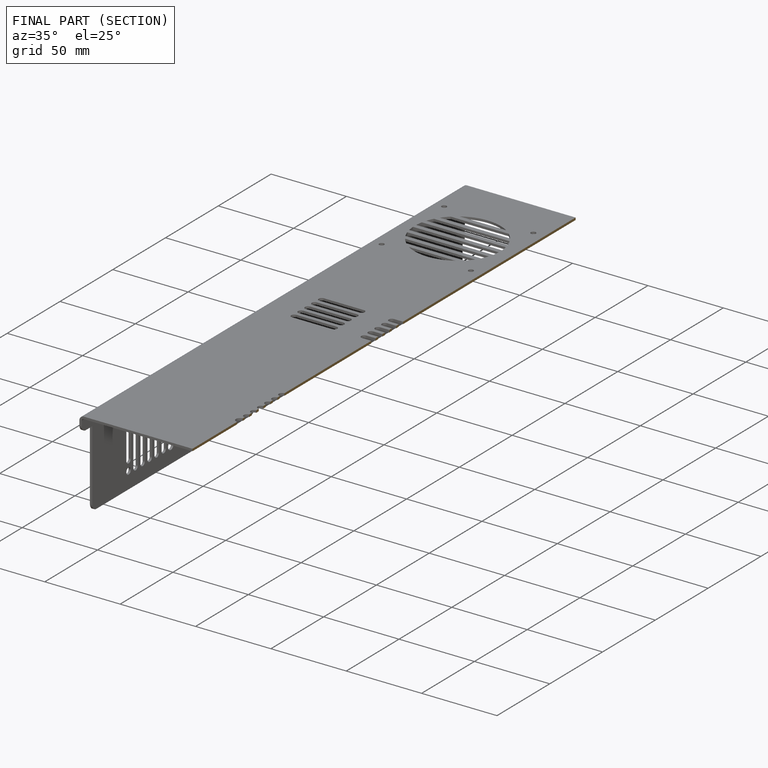
[diagram: finished part — half-section view (interior)]
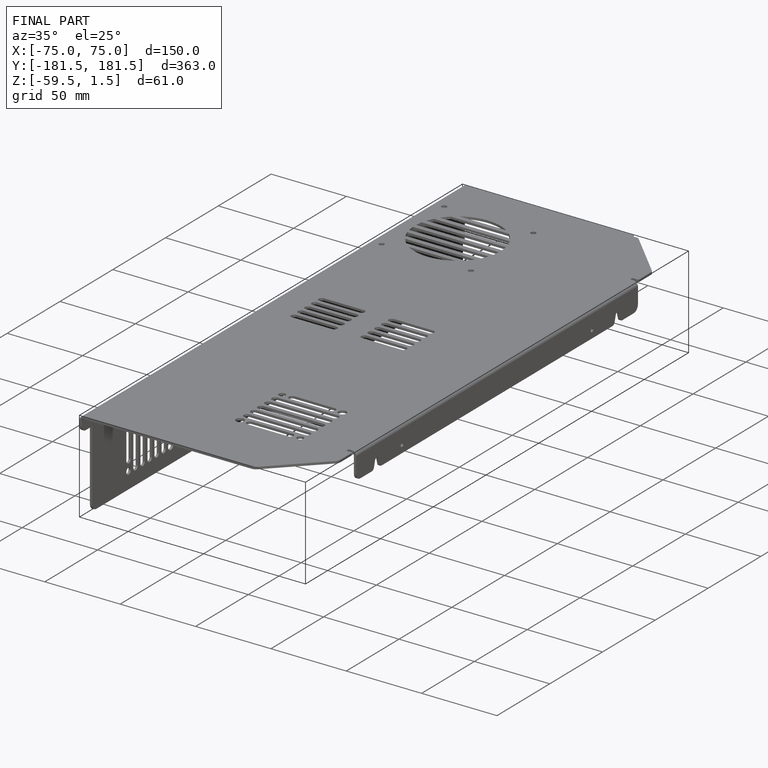
[diagram: finished part — iso view with bounding-box wireframe]
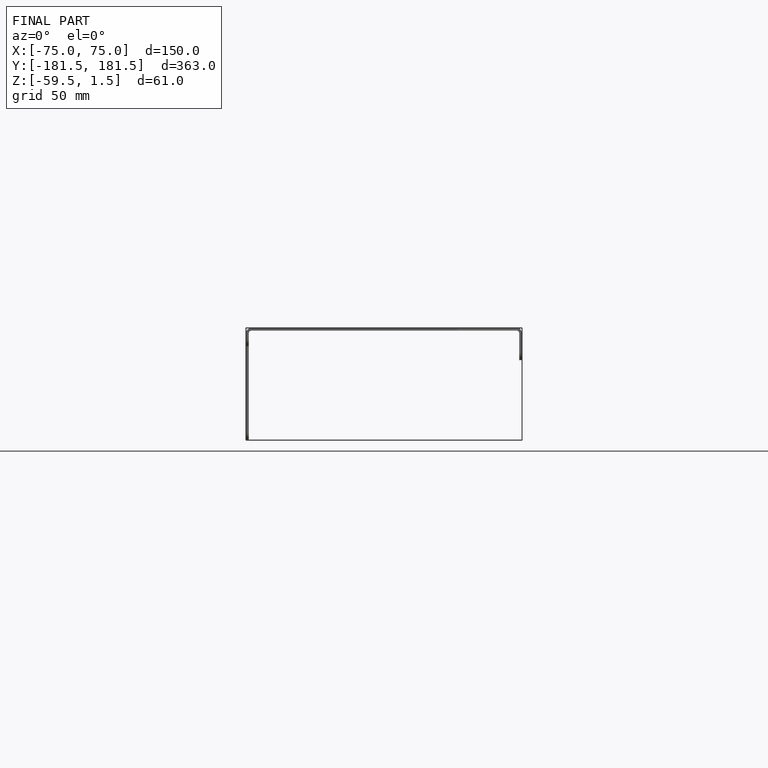
[diagram: finished part — front view with bounding-box wireframe]
